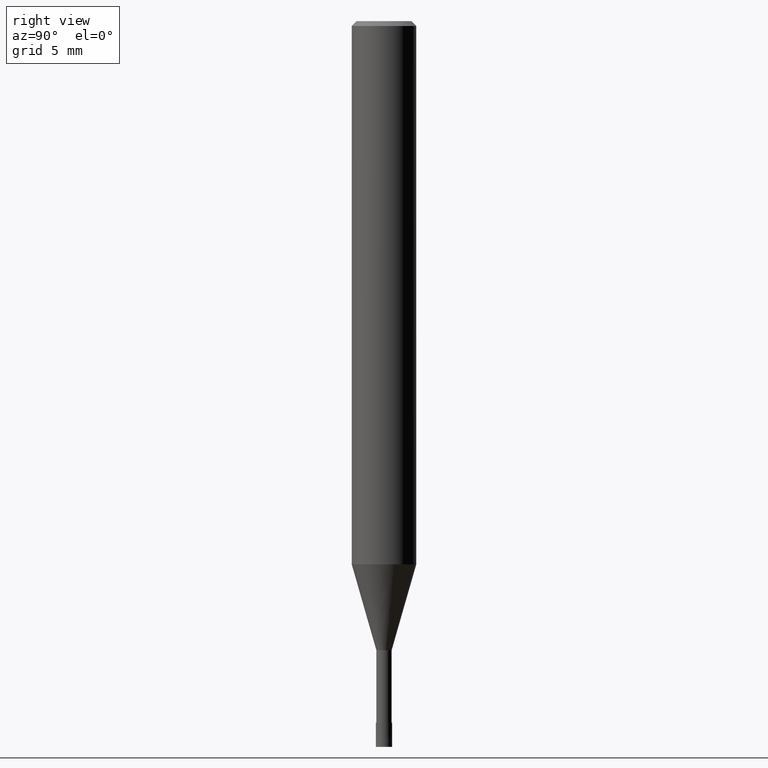
[diagram: clean part render]
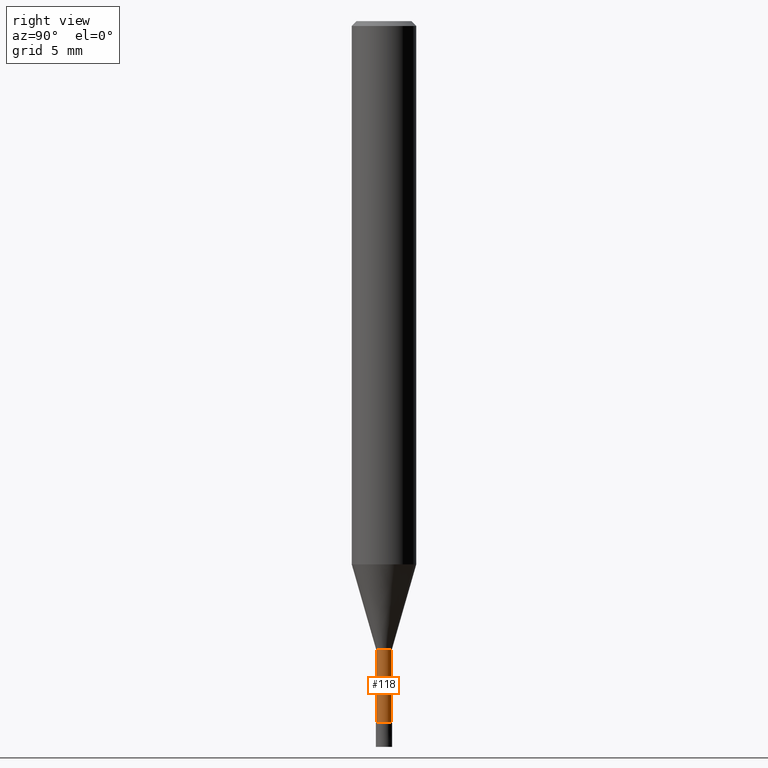
[diagram: same view with one face highlighted and labeled with its STEP entity id]
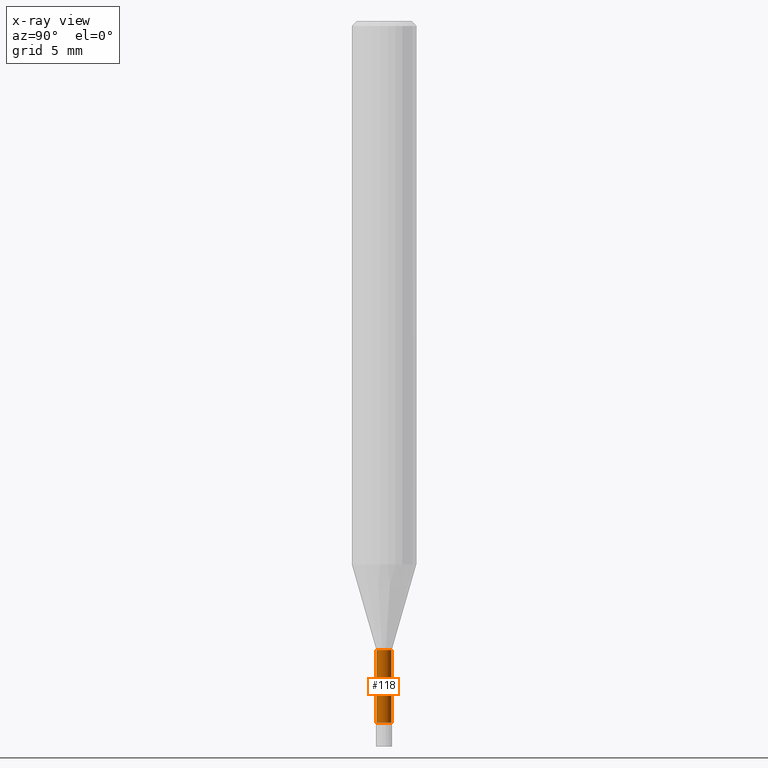
[diagram: x-ray of the same camera — body ghosted, the highlighted face saturated]
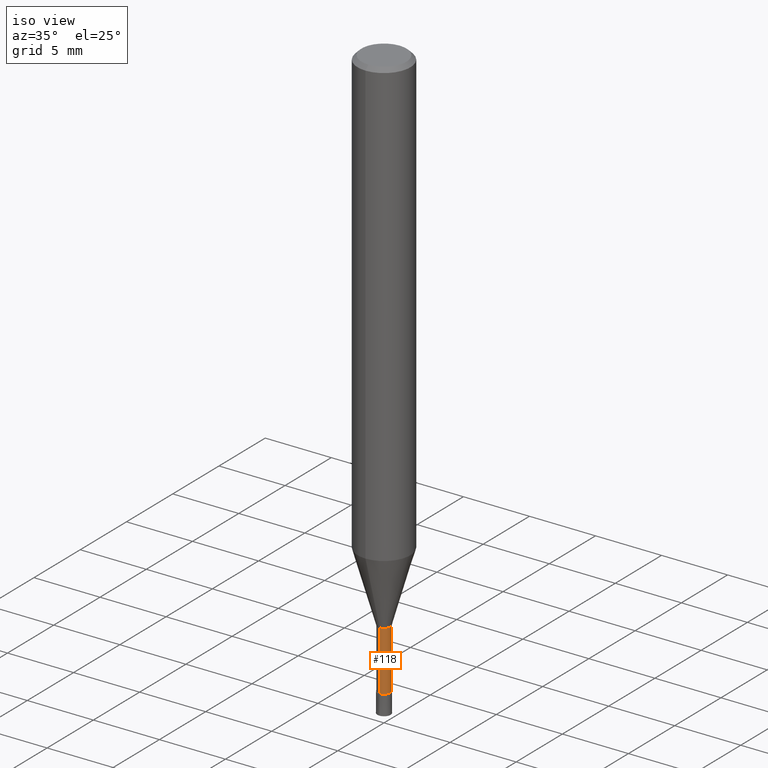
[diagram: same view with one face highlighted and labeled with its STEP entity id]
A machine part, right view. The second image highlights one B-rep face of the part: STEP entity #118.
The next image is the same camera in x-ray: the body ghosted, the highlighted face saturated — about 0% of this face is hidden behind the body in this view.
A second angle (iso view) of the same face is appended — the face is thin or edge-on in the first view.
In plain terms, the highlighted cylindrical surface (edge-blend (fillet) strip) has radius 0.4749 mm, axis along (-0, -0, 1).
Its self-contained STEP definition (entity closure, byte-faithful):
#98=VERTEX_POINT('',#235);
#104=VERTEX_POINT('',#241);
#112=EDGE_CURVE('',#148,#104,#249,.T.);
#118=ADVANCED_FACE('',(#255),#256,.T.);
#140=EDGE_CURVE('',#104,#190,#281,.T.);
#148=VERTEX_POINT('',#290);
#174=EDGE_CURVE('',#190,#98,#320,.T.);
#190=VERTEX_POINT('',#340);
#208=EDGE_CURVE('',#148,#98,#361,.T.);
#235=CARTESIAN_POINT('',(5.81626787747938E-017,-0.47495,-39.0));
#241=CARTESIAN_POINT('',(0.0,0.47495,-43.5));
#249=LINE('',#402,#403);
#255=FACE_OUTER_BOUND('',#412,.T.);
#256=CYLINDRICAL_SURFACE('',#413,0.47495);
#281=CIRCLE('',#442,0.47495);
#290=CARTESIAN_POINT('',(0.0,0.47495,-39.0));
#320=LINE('',#490,#491);
#340=CARTESIAN_POINT('',(5.81626787747938E-017,-0.47495,-43.5));
#361=CIRCLE('',#540,0.47495);
#402=CARTESIAN_POINT('',(-5.81626787747938E-017,0.47495,-41.25));
#403=VECTOR('',#553,1.0);
#412=EDGE_LOOP('',(#559,#560,#561,#562));
#413=AXIS2_PLACEMENT_3D('',#563,#564,#565);
#442=AXIS2_PLACEMENT_3D('',#602,#603,#604);
#490=CARTESIAN_POINT('',(5.81626787747938E-017,-0.47495,-41.25));
#491=VECTOR('',#648,1.0);
#540=AXIS2_PLACEMENT_3D('',#711,#712,#713);
#553=DIRECTION('',(0.0,0.0,-1.0));
#559=ORIENTED_EDGE('',*,*,#112,.F.);
#560=ORIENTED_EDGE('',*,*,#208,.T.);
#561=ORIENTED_EDGE('',*,*,#174,.F.);
#562=ORIENTED_EDGE('',*,*,#140,.F.);
#563=CARTESIAN_POINT('',(0.0,0.0,-41.25));
#564=DIRECTION('',(-0.0,-0.0,1.0));
#565=DIRECTION('',(0.0,1.0,0.0));
#602=CARTESIAN_POINT('',(0.0,0.0,-43.5));
#603=DIRECTION('',(0.0,0.0,-1.0));
#604=DIRECTION('',(0.0,1.0,0.0));
#648=DIRECTION('',(-0.0,-0.0,1.0));
#711=CARTESIAN_POINT('',(0.0,0.0,-39.0));
#712=DIRECTION('',(0.0,0.0,-1.0));
#713=DIRECTION('',(0.0,1.0,0.0));